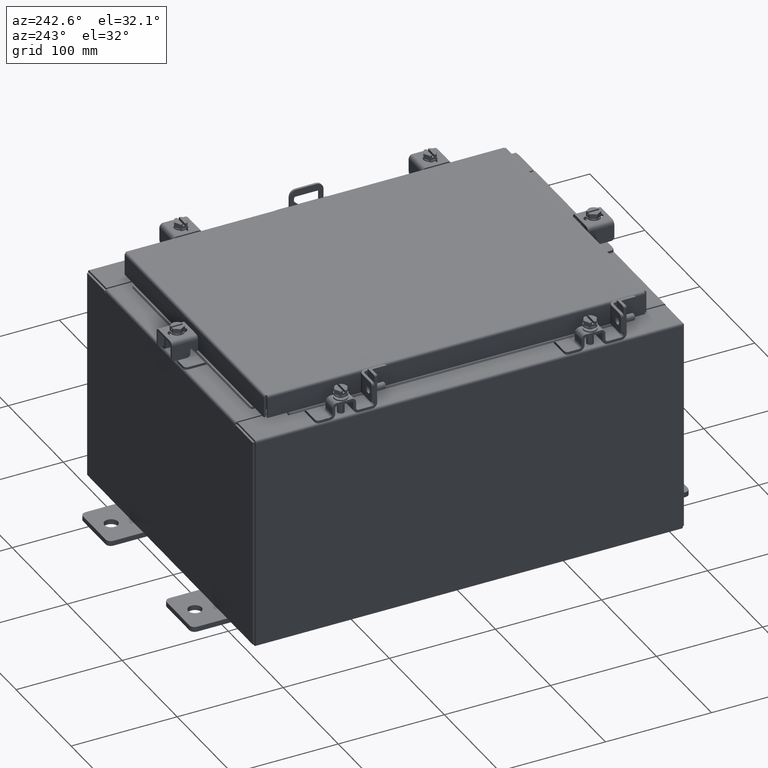
[diagram: clean part render]
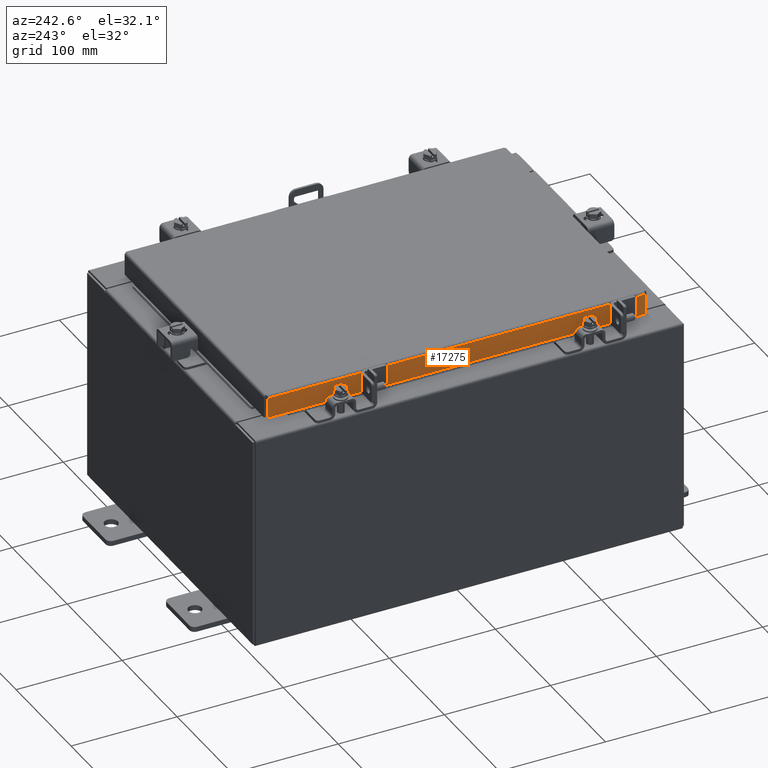
[diagram: same view with one face highlighted and labeled with its STEP entity id]
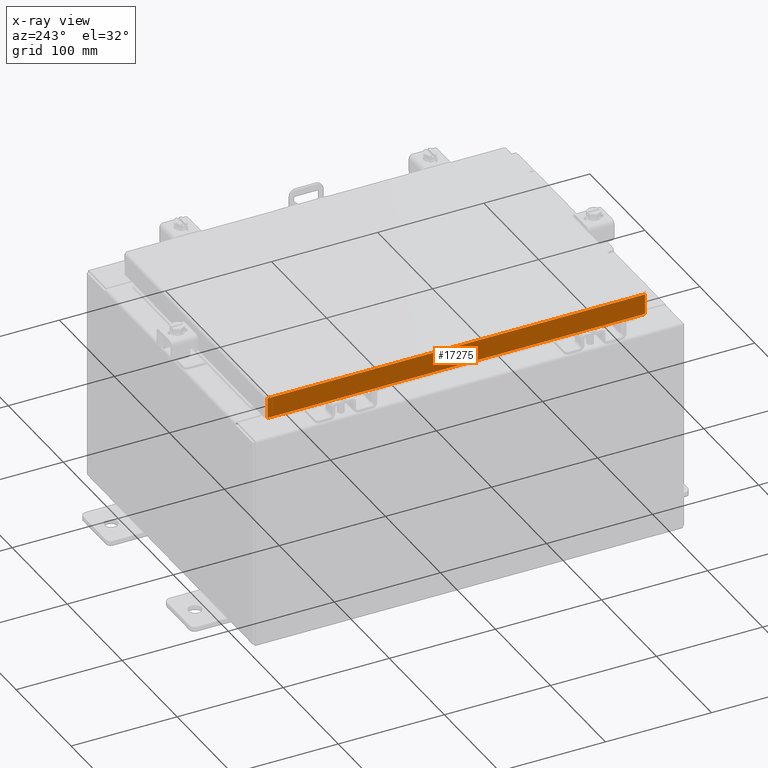
[diagram: x-ray of the same camera — body ghosted, the highlighted face saturated]
A machine part, auxiliary view. The second image highlights one B-rep face of the part: STEP entity #17275.
The next image is the same camera in x-ray: the body ghosted, the highlighted face saturated — about 0% of this face is hidden behind the body in this view.
In plain terms, the highlighted planar face has unit normal (1, 0, -0).
Its self-contained STEP definition (entity closure, byte-faithful):
#125 = CARTESIAN_POINT ( 'NONE',  ( -5.078000000000003000, -7.094000000000000300, -0.8499999999999996400 ) ) ;
#872 = DIRECTION ( 'NONE',  ( 1.000000000000000000, 3.527974528565840600E-031, -2.818880942772360100E-015 ) ) ;
#1704 = CARTESIAN_POINT ( 'NONE',  ( -5.078000000000003000, 7.005157864376276000, -0.8499999999999978700 ) ) ;
#2326 = VERTEX_POINT ( 'NONE', #19585 ) ;
#2471 = CARTESIAN_POINT ( 'NONE',  ( -5.078000000000001200, -1.791505465605733800E-030, 1.457509108340963000E-014 ) ) ;
#2694 = LINE ( 'NONE', #125, #19324 ) ;
#2757 = CARTESIAN_POINT ( 'NONE',  ( -5.078000000000001200, -6.255157864376263500, -0.8500000000000002000 ) ) ;
#2895 = ORIENTED_EDGE ( 'NONE', *, *, #5034, .F. ) ;
#2909 = LINE ( 'NONE', #13397, #15263 ) ;
#4262 = EDGE_CURVE ( 'NONE', #6353, #10241, #6713, .T. ) ;
#4513 = EDGE_CURVE ( 'NONE', #10241, #12781, #2694, .T. ) ;
#4620 = CARTESIAN_POINT ( 'NONE',  ( -5.078000000000001200, 7.005157864376269700, 6.349184700164955700E-014 ) ) ;
#4679 = VECTOR ( 'NONE', #6245, 39.37007874015748100 ) ;
#5030 = EDGE_CURVE ( 'NONE', #9676, #12781, #5689, .T. ) ;
#5034 = EDGE_CURVE ( 'NONE', #2326, #6353, #8957, .T. ) ;
#5323 = EDGE_CURVE ( 'NONE', #11190, #2326, #2909, .T. ) ;
#5689 = LINE ( 'NONE', #4620, #4679 ) ;
#5980 = DIRECTION ( 'NONE',  ( -2.818880942772360100E-015, 0.0000000000000000000, -1.000000000000000000 ) ) ;
#6114 = EDGE_CURVE ( 'NONE', #9676, #11190, #9656, .T. ) ;
#6245 = DIRECTION ( 'NONE',  ( -2.818880942772360100E-015, 6.982962677686267500E-015, -1.000000000000000000 ) ) ;
#6353 = VERTEX_POINT ( 'NONE', #17929 ) ;
#6518 = CARTESIAN_POINT ( 'NONE',  ( -5.078000000000001200, -7.005157864376269700, -0.08770000000000007000 ) ) ;
#6647 = CARTESIAN_POINT ( 'NONE',  ( -5.078000000000001200, 7.005157864376269700, -0.08770000000000007000 ) ) ;
#6713 = LINE ( 'NONE', #2757, #10496 ) ;
#6994 = DIRECTION ( 'NONE',  ( -2.818880942772360100E-015, 6.982962677686267500E-015, -1.000000000000000000 ) ) ;
#7873 = CARTESIAN_POINT ( 'NONE',  ( -5.078000000000003000, -7.094000000000000300, -0.8499999999999996400 ) ) ;
#8453 = VECTOR ( 'NONE', #14199, 39.37007874015748100 ) ;
#8957 = LINE ( 'NONE', #7873, #8453 ) ;
#9645 = ORIENTED_EDGE ( 'NONE', *, *, #6114, .F. ) ;
#9656 = LINE ( 'NONE', #14180, #13945 ) ;
#9676 = VERTEX_POINT ( 'NONE', #6647 ) ;
#9982 = ORIENTED_EDGE ( 'NONE', *, *, #4262, .F. ) ;
#10241 = VERTEX_POINT ( 'NONE', #18551 ) ;
#10383 = EDGE_LOOP ( 'NONE', ( #9645, #15696, #20096, #9982, #2895, #14033 ) ) ;
#10496 = VECTOR ( 'NONE', #20422, 39.37007874015748100 ) ;
#10527 = FACE_OUTER_BOUND ( 'NONE', #10383, .T. ) ;
#10956 = DIRECTION ( 'NONE',  ( 3.527974528565840600E-031, -1.000000000000000000, -9.616438660265784900E-046 ) ) ;
#11190 = VERTEX_POINT ( 'NONE', #6518 ) ;
#12781 = VERTEX_POINT ( 'NONE', #1704 ) ;
#12934 = DIRECTION ( 'NONE',  ( 4.379057701015054300E-047, 1.000000000000000000, 1.251551449028595500E-016 ) ) ;
#13397 = CARTESIAN_POINT ( 'NONE',  ( -5.078000000000001200, -7.005157864376269700, -0.07469999999999978000 ) ) ;
#13945 = VECTOR ( 'NONE', #10956, 39.37007874015748100 ) ;
#14033 = ORIENTED_EDGE ( 'NONE', *, *, #5323, .F. ) ;
#14180 = CARTESIAN_POINT ( 'NONE',  ( -5.078000000000001200, -7.094000000000000300, -0.08770000000000007000 ) ) ;
#14199 = DIRECTION ( 'NONE',  ( 4.379057701015054300E-047, 1.000000000000000000, 1.251551449028595500E-016 ) ) ;
#15263 = VECTOR ( 'NONE', #6994, 39.37007874015748100 ) ;
#15659 = PLANE ( 'NONE',  #20073 ) ;
#15696 = ORIENTED_EDGE ( 'NONE', *, *, #5030, .T. ) ;
#17275 = ADVANCED_FACE ( 'NONE', ( #10527 ), #15659, .F. ) ;
#17929 = CARTESIAN_POINT ( 'NONE',  ( -5.078000000000001200, -6.255157864376263500, -0.8500000000000002000 ) ) ;
#18551 = CARTESIAN_POINT ( 'NONE',  ( -5.078000000000001200, 6.255157864376274200, -0.8500000000000002000 ) ) ;
#19324 = VECTOR ( 'NONE', #12934, 39.37007874015748100 ) ;
#19585 = CARTESIAN_POINT ( 'NONE',  ( -5.078000000000003000, -7.005157864376264400, -0.8499999999999996400 ) ) ;
#20073 = AXIS2_PLACEMENT_3D ( 'NONE', #2471, #872, #5980 ) ;
#20096 = ORIENTED_EDGE ( 'NONE', *, *, #4513, .F. ) ;
#20422 = DIRECTION ( 'NONE',  ( -0.0000000000000000000, 1.000000000000000000, -0.0000000000000000000 ) ) ;